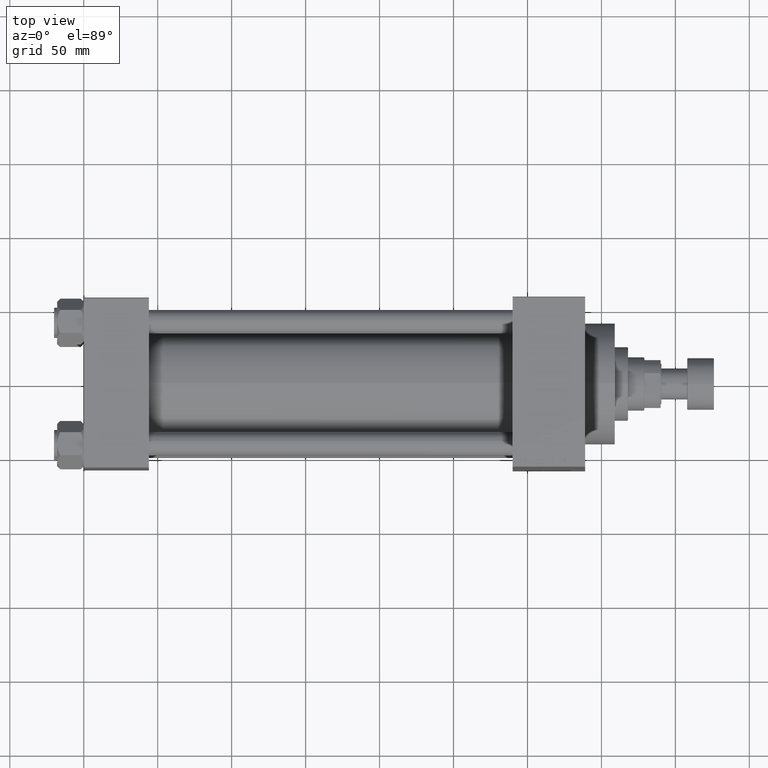
[diagram: clean part render]
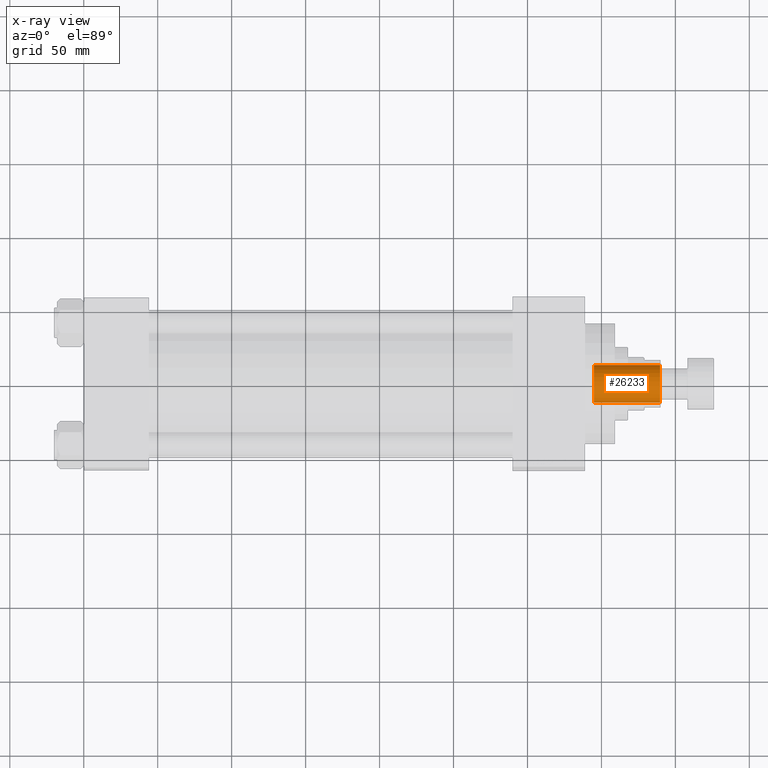
[diagram: x-ray — body ghosted, one internal face saturated and labeled with its STEP entity id]
A machine part, top view, then the same camera in x-ray: the body is ghosted and one INTERNAL B-rep face — a face not visible from any outside direction — is saturated and labeled: STEP entity #26233.
In plain terms, the highlighted cylindrical surface (edge-blend (fillet) strip) has radius 12.75 mm, axis along (1, 0, 0).
Its self-contained STEP definition (entity closure, byte-faithful):
#777 = AXIS2_PLACEMENT_3D ( 'NONE', #8695, #19694, #11375 ) ;
#4029 = ORIENTED_EDGE ( 'NONE', *, *, #36266, .F. ) ;
#5130 = CARTESIAN_POINT ( 'NONE',  ( -12.74999999999999112, 1.561424668912874125E-15, 346.0000000000000000 ) ) ;
#6182 = ORIENTED_EDGE ( 'NONE', *, *, #32770, .F. ) ;
#6841 = VERTEX_POINT ( 'NONE', #17404 ) ;
#7495 = DIRECTION ( 'NONE',  ( -0.000000000000000000, -0.000000000000000000, 1.000000000000000000 ) ) ;
#8058 = VERTEX_POINT ( 'NONE', #17826 ) ;
#8695 = CARTESIAN_POINT ( 'NONE',  ( 0.000000000000000000, 0.000000000000000000, 345.6999999999999318 ) ) ;
#9181 = VECTOR ( 'NONE', #7495, 1000.000000000000000 ) ;
#9364 = CARTESIAN_POINT ( 'NONE',  ( 0.000000000000000000, 0.000000000000000000, 346.0000000000000000 ) ) ;
#10068 = VECTOR ( 'NONE', #16382, 1000.000000000000000 ) ;
#11353 = ORIENTED_EDGE ( 'NONE', *, *, #42001, .T. ) ;
#11375 = DIRECTION ( 'NONE',  ( 1.000000000000000000, 0.000000000000000000, 0.000000000000000000 ) ) ;
#13037 = FACE_OUTER_BOUND ( 'NONE', #48101, .T. ) ;
#13431 = ORIENTED_EDGE ( 'NONE', *, *, #39830, .T. ) ;
#15613 = CIRCLE ( 'NONE', #777, 12.74999999999999112 ) ;
#16382 = DIRECTION ( 'NONE',  ( -0.000000000000000000, -0.000000000000000000, 1.000000000000000000 ) ) ;
#17404 = CARTESIAN_POINT ( 'NONE',  ( 12.74999999999999112, 0.000000000000000000, 345.6999999999999318 ) ) ;
#17826 = CARTESIAN_POINT ( 'NONE',  ( -12.74999999999998934, 1.561424668912873928E-15, 301.0000000000000000 ) ) ;
#18654 = CIRCLE ( 'NONE', #33497, 12.74999999999998934 ) ;
#19694 = DIRECTION ( 'NONE',  ( 0.000000000000000000, 0.000000000000000000, 1.000000000000000000 ) ) ;
#20573 = DIRECTION ( 'NONE',  ( 1.000000000000000000, 0.000000000000000000, 0.000000000000000000 ) ) ;
#22757 = VERTEX_POINT ( 'NONE', #45618 ) ;
#24232 = CARTESIAN_POINT ( 'NONE',  ( 0.000000000000000000, 0.000000000000000000, 301.0000000000000000 ) ) ;
#24279 = DIRECTION ( 'NONE',  ( -0.000000000000000000, -0.000000000000000000, 1.000000000000000000 ) ) ;
#24473 = DIRECTION ( 'NONE',  ( -0.000000000000000000, -0.000000000000000000, 1.000000000000000000 ) ) ;
#26093 = LINE ( 'NONE', #40993, #9181 ) ;
#26233 = ADVANCED_FACE ( 'NONE', ( #13037 ), #27955, .F. ) ;
#27872 = CARTESIAN_POINT ( 'NONE',  ( 12.74999999999998934, 0.000000000000000000, 301.0000000000000000 ) ) ;
#27955 = CYLINDRICAL_SURFACE ( 'NONE', #32410, 12.74999999999999112 ) ;
#32410 = AXIS2_PLACEMENT_3D ( 'NONE', #9364, #24279, #39190 ) ;
#32770 = EDGE_CURVE ( 'NONE', #33394, #6841, #26093, .T. ) ;
#33394 = VERTEX_POINT ( 'NONE', #27872 ) ;
#33497 = AXIS2_PLACEMENT_3D ( 'NONE', #24232, #24473, #20573 ) ;
#36091 = LINE ( 'NONE', #5130, #10068 ) ;
#36266 = EDGE_CURVE ( 'NONE', #8058, #33394, #18654, .T. ) ;
#39190 = DIRECTION ( 'NONE',  ( 1.000000000000000000, 0.000000000000000000, 0.000000000000000000 ) ) ;
#39830 = EDGE_CURVE ( 'NONE', #8058, #22757, #36091, .T. ) ;
#40993 = CARTESIAN_POINT ( 'NONE',  ( 12.74999999999999112, 0.000000000000000000, 346.0000000000000000 ) ) ;
#42001 = EDGE_CURVE ( 'NONE', #22757, #6841, #15613, .T. ) ;
#45618 = CARTESIAN_POINT ( 'NONE',  ( -12.74999999999999112, 1.561424668912874125E-15, 345.6999999999999318 ) ) ;
#48101 = EDGE_LOOP ( 'NONE', ( #4029, #13431, #11353, #6182 ) ) ;